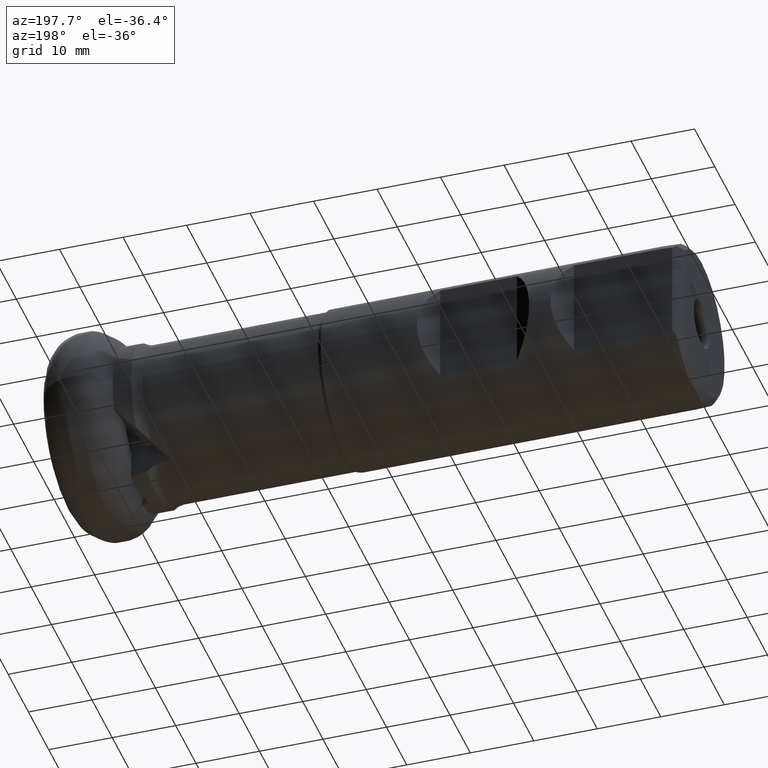
[diagram: clean part render]
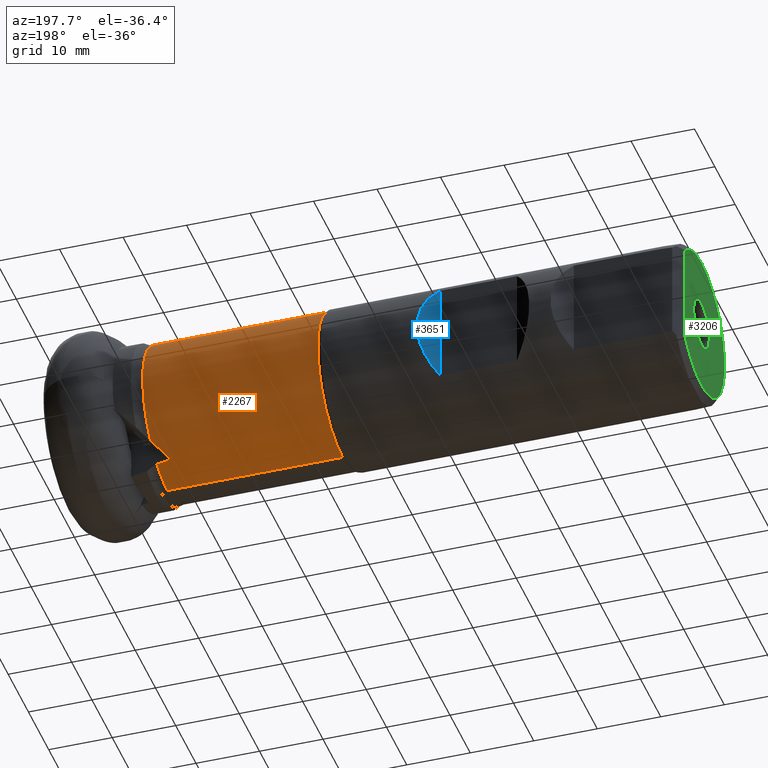
[diagram: same view with three faces highlighted in distinct colors, each labeled with its STEP entity id]
A machine part, auxiliary view with three faces highlighted in distinct colors.
Their STEP definitions:

[orange] entity #2267 — the highlighted cylindrical surface (partial cylindrical patch) has radius 12.2 mm, axis along (1, -0, -0).
#203 = DIRECTION ( 'NONE',  ( 1.000000000000000000, -0.0000000000000000000, -0.0000000000000000000 ) ) ;
#280 = DIRECTION ( 'NONE',  ( 1.000000000000000000, -0.0000000000000000000, -0.0000000000000000000 ) ) ;
#283 = CARTESIAN_POINT ( 'NONE',  ( -16.19876356627006700, 5.458656882526872400, -10.91135154556829100 ) ) ;
#328 = CARTESIAN_POINT ( 'NONE',  ( -15.53705156797336800, 7.569959643064479800, -9.639356252394112100 ) ) ;
#359 = CIRCLE ( 'NONE', #575, 12.20000000000001400 ) ;
#401 = EDGE_CURVE ( 'NONE', #2780, #2243, #359, .T. ) ;
#453 =( BOUNDED_CURVE ( )  B_SPLINE_CURVE ( 3, ( #1324, #328, #3348, #2004 ),
 .UNSPECIFIED., .F., .T. ) 
 B_SPLINE_CURVE_WITH_KNOTS ( ( 4, 4 ),
 ( 2.231314136313999900, 2.519337734126903900 ),
 .UNSPECIFIED. ) 
 CURVE ( )  GEOMETRIC_REPRESENTATION_ITEM ( )  RATIONAL_B_SPLINE_CURVE ( ( 1.000000000000000000, 0.9930988068530011100, 0.9930988068530011100, 1.000000000000000000 ) ) 
 REPRESENTATION_ITEM ( '' )  );
#464 = CARTESIAN_POINT ( 'NONE',  ( -16.96192711833195300, 5.565912525148091200, -10.85636300804280000 ) ) ;
#570 = LINE ( 'NONE', #1992, #1906 ) ;
#575 = AXIS2_PLACEMENT_3D ( 'NONE', #673, #2361, #3075 ) ;
#659 = CARTESIAN_POINT ( 'NONE',  ( -14.65546320936874700, 0.0000000000000000000, 0.0000000000000000000 ) ) ;
#665 = DIRECTION ( 'NONE',  ( 1.000000000000000000, -0.0000000000000000000, -0.0000000000000000000 ) ) ;
#673 = CARTESIAN_POINT ( 'NONE',  ( -14.65546320936874700, 0.0000000000000000000, 0.0000000000000000000 ) ) ;
#679 = DIRECTION ( 'NONE',  ( 1.000000000000000000, -0.0000000000000000000, -0.0000000000000000000 ) ) ;
#932 = EDGE_CURVE ( 'NONE', #2243, #3869, #3958, .T. ) ;
#1011 = CARTESIAN_POINT ( 'NONE',  ( -42.23038475772934000, 0.0000000000000000000, 0.0000000000000000000 ) ) ;
#1307 = CIRCLE ( 'NONE', #3316, 12.19999999999999900 ) ;
#1316 = CARTESIAN_POINT ( 'NONE',  ( -14.65546320936874700, 5.241760162171460500, -11.01653077889190000 ) ) ;
#1320 = CARTESIAN_POINT ( 'NONE',  ( 0.0000000000000000000, 1.494069094959771600E-015, 12.20000000000000600 ) ) ;
#1324 = CARTESIAN_POINT ( 'NONE',  ( -14.65546320936874700, 8.420471293539673500, -8.828117760580378000 ) ) ;
#1524 = VECTOR ( 'NONE', #679, 1000.000000000000000 ) ;
#1536 = CARTESIAN_POINT ( 'NONE',  ( -14.65546320936874700, 0.0000000000000000000, -12.20000000000001500 ) ) ;
#1537 = AXIS2_PLACEMENT_3D ( 'NONE', #1886, #203, #2582 ) ;
#1538 = VERTEX_POINT ( 'NONE', #3115 ) ;
#1873 = VERTEX_POINT ( 'NONE', #2012 ) ;
#1886 = CARTESIAN_POINT ( 'NONE',  ( 0.0000000000000000000, 0.0000000000000000000, 0.0000000000000000000 ) ) ;
#1906 = VECTOR ( 'NONE', #4464, 1000.000000000000000 ) ;
#1917 = EDGE_CURVE ( 'NONE', #3026, #1873, #2168, .T. ) ;
#1992 = CARTESIAN_POINT ( 'NONE',  ( 0.0000000000000000000, 0.0000000000000000000, -12.20000000000000600 ) ) ;
#2004 = CARTESIAN_POINT ( 'NONE',  ( -16.96192711833195300, 5.565912525148091200, -10.85636300804280000 ) ) ;
#2012 = CARTESIAN_POINT ( 'NONE',  ( -14.65546320936874700, 1.494069094959772400E-015, 12.20000000000001500 ) ) ;
#2073 = EDGE_CURVE ( 'NONE', #3026, #3869, #453, .T. ) ;
#2168 = CIRCLE ( 'NONE', #2518, 12.20000000000001400 ) ;
#2243 = VERTEX_POINT ( 'NONE', #3646 ) ;
#2267 = ADVANCED_FACE ( 'NONE', ( #2384 ), #3862, .T. ) ;
#2361 = DIRECTION ( 'NONE',  ( 1.000000000000000000, -0.0000000000000000000, -0.0000000000000000000 ) ) ;
#2384 = FACE_OUTER_BOUND ( 'NONE', #4205, .T. ) ;
#2518 = AXIS2_PLACEMENT_3D ( 'NONE', #659, #280, #2638 ) ;
#2564 = ORIENTED_EDGE ( 'NONE', *, *, #4419, .F. ) ;
#2582 = DIRECTION ( 'NONE',  ( 0.0000000000000000000, 0.0000000000000000000, -1.000000000000000000 ) ) ;
#2638 = DIRECTION ( 'NONE',  ( 0.0000000000000000000, 0.0000000000000000000, -1.000000000000000000 ) ) ;
#2780 = VERTEX_POINT ( 'NONE', #1536 ) ;
#2827 = CARTESIAN_POINT ( 'NONE',  ( -42.23038475772934000, 1.494069094959771100E-015, 12.19999999999999900 ) ) ;
#2892 = ORIENTED_EDGE ( 'NONE', *, *, #4400, .T. ) ;
#3026 = VERTEX_POINT ( 'NONE', #3150 ) ;
#3075 = DIRECTION ( 'NONE',  ( 0.0000000000000000000, 0.0000000000000000000, -1.000000000000000000 ) ) ;
#3115 = CARTESIAN_POINT ( 'NONE',  ( -42.23038475772934000, 0.0000000000000000000, -12.19999999999999900 ) ) ;
#3150 = CARTESIAN_POINT ( 'NONE',  ( -14.65546320936874700, 8.420471293539673500, -8.828117760580378000 ) ) ;
#3316 = AXIS2_PLACEMENT_3D ( 'NONE', #1011, #665, #3375 ) ;
#3348 = CARTESIAN_POINT ( 'NONE',  ( -16.31121552596262700, 6.611827800696149300, -10.32013619542571400 ) ) ;
#3365 = LINE ( 'NONE', #1320, #1524 ) ;
#3375 = DIRECTION ( 'NONE',  ( 0.0000000000000000000, 0.0000000000000000000, -1.000000000000000000 ) ) ;
#3448 = ORIENTED_EDGE ( 'NONE', *, *, #932, .F. ) ;
#3589 = EDGE_CURVE ( 'NONE', #3716, #1873, #3365, .T. ) ;
#3646 = CARTESIAN_POINT ( 'NONE',  ( -14.65546320936874700, 5.241760162171460500, -11.01653077889190000 ) ) ;
#3716 = VERTEX_POINT ( 'NONE', #2827 ) ;
#3815 = ORIENTED_EDGE ( 'NONE', *, *, #3589, .T. ) ;
#3816 = ORIENTED_EDGE ( 'NONE', *, *, #401, .F. ) ;
#3818 = ORIENTED_EDGE ( 'NONE', *, *, #1917, .F. ) ;
#3862 = CYLINDRICAL_SURFACE ( 'NONE', #1537, 12.20000000000000600 ) ;
#3869 = VERTEX_POINT ( 'NONE', #464 ) ;
#3958 =( BOUNDED_CURVE ( )  B_SPLINE_CURVE ( 3, ( #1316, #4101, #283, #4388 ),
 .UNSPECIFIED., .F., .F. ) 
 B_SPLINE_CURVE_WITH_KNOTS ( ( 4, 4 ),
 ( 2.014904207043199100, 2.044541678735901900 ),
 .UNSPECIFIED. ) 
 CURVE ( )  GEOMETRIC_REPRESENTATION_ITEM ( )  RATIONAL_B_SPLINE_CURVE ( ( 1.000000000000000000, 0.9999268030287936600, 0.9999268030287936600, 1.000000000000000000 ) ) 
 REPRESENTATION_ITEM ( '' )  );
#4101 = CARTESIAN_POINT ( 'NONE',  ( -15.42988598377206000, 5.350598185298645500, -10.96474471073596700 ) ) ;
#4205 = EDGE_LOOP ( 'NONE', ( #2892, #3815, #3818, #4249, #3448, #3816, #2564 ) ) ;
#4249 = ORIENTED_EDGE ( 'NONE', *, *, #2073, .T. ) ;
#4388 = CARTESIAN_POINT ( 'NONE',  ( -16.96192711833195300, 5.565912525148091200, -10.85636300804280000 ) ) ;
#4400 = EDGE_CURVE ( 'NONE', #1538, #3716, #1307, .T. ) ;
#4419 = EDGE_CURVE ( 'NONE', #1538, #2780, #570, .T. ) ;
#4464 = DIRECTION ( 'NONE',  ( 1.000000000000000000, -0.0000000000000000000, -0.0000000000000000000 ) ) ;

[blue] entity #3651 — the highlighted planar face has unit normal (0.7071, -0.7071, 0).
#363 = DIRECTION ( 'NONE',  ( 0.7071067811865386900, 0.7071067811865564500, 0.0000000000000000000 ) ) ;
#449 = CARTESIAN_POINT ( 'NONE',  ( -56.80282131661456200, 13.59717868338555400, -3.089404912919581700 ) ) ;
#708 = EDGE_CURVE ( 'NONE', #3521, #3237, #3844, .T. ) ;
#778 = CARTESIAN_POINT ( 'NONE',  ( -60.70000000000000300, 9.700000000000011700, 7.884161337770763100 ) ) ;
#955 = ORIENTED_EDGE ( 'NONE', *, *, #708, .T. ) ;
#1633 = CARTESIAN_POINT ( 'NONE',  ( -60.70000000000000300, 9.700000000000011700, 7.884161337770763100 ) ) ;
#1723 = CARTESIAN_POINT ( 'NONE',  ( -54.70000000000015900, 15.70000000000001000, -25.00000000000000000 ) ) ;
#1796 = DIRECTION ( 'NONE',  ( -0.0000000000000000000, -0.0000000000000000000, 1.000000000000000000 ) ) ;
#1812 = EDGE_LOOP ( 'NONE', ( #3931, #955 ) ) ;
#1851 =( BOUNDED_CURVE ( )  B_SPLINE_CURVE ( 3, ( #1633, #4053, #449, #4181 ),
 .UNSPECIFIED., .F., .T. ) 
 B_SPLINE_CURVE_WITH_KNOTS ( ( 4, 4 ),
 ( 5.600687989903618400, 6.965682624455555000 ),
 .UNSPECIFIED. ) 
 CURVE ( )  GEOMETRIC_REPRESENTATION_ITEM ( )  RATIONAL_B_SPLINE_CURVE ( ( 1.000000000000000000, 0.8506666666666681300, 0.8506666666666681300, 1.000000000000000000 ) ) 
 REPRESENTATION_ITEM ( '' )  );
#2765 = FACE_OUTER_BOUND ( 'NONE', #1812, .T. ) ;
#2800 = CARTESIAN_POINT ( 'NONE',  ( -60.70000000000000300, 9.700000000000011700, -25.00000000000000000 ) ) ;
#3111 = DIRECTION ( 'NONE',  ( 0.7071067811865564500, -0.7071067811865386900, 0.0000000000000000000 ) ) ;
#3237 = VERTEX_POINT ( 'NONE', #778 ) ;
#3362 = CARTESIAN_POINT ( 'NONE',  ( -60.70000000000000300, 9.700000000000011700, -7.884161337770777300 ) ) ;
#3391 = PLANE ( 'NONE',  #3645 ) ;
#3521 = VERTEX_POINT ( 'NONE', #3362 ) ;
#3645 = AXIS2_PLACEMENT_3D ( 'NONE', #1723, #3111, #363 ) ;
#3651 = ADVANCED_FACE ( 'NONE', ( #2765 ), #3391, .F. ) ;
#3844 = LINE ( 'NONE', #2800, #4060 ) ;
#3931 = ORIENTED_EDGE ( 'NONE', *, *, #4095, .T. ) ;
#4053 = CARTESIAN_POINT ( 'NONE',  ( -56.80282131661456200, 13.59717868338555900, 3.089404912919573800 ) ) ;
#4060 = VECTOR ( 'NONE', #1796, 1000.000000000000000 ) ;
#4095 = EDGE_CURVE ( 'NONE', #3237, #3521, #1851, .T. ) ;
#4181 = CARTESIAN_POINT ( 'NONE',  ( -60.70000000000000300, 9.700000000000011700, -7.884161337770777300 ) ) ;

[green] entity #3206 — the highlighted planar face has unit normal (-1, 0, 0).
#308 = CARTESIAN_POINT ( 'NONE',  ( -98.75000000000000000, 4.687152256378822200E-016, -3.827350269189615100 ) ) ;
#495 = CARTESIAN_POINT ( 'NONE',  ( -98.75000000000000000, 1.457329690985349600E-015, 11.39999999999998800 ) ) ;
#521 = AXIS2_PLACEMENT_3D ( 'NONE', #3239, #3221, #1494 ) ;
#625 = CIRCLE ( 'NONE', #1163, 3.827350269189615100 ) ;
#741 = EDGE_CURVE ( 'NONE', #2779, #3446, #625, .T. ) ;
#806 = ORIENTED_EDGE ( 'NONE', *, *, #860, .T. ) ;
#860 = EDGE_CURVE ( 'NONE', #3446, #2779, #1675, .T. ) ;
#908 = DIRECTION ( 'NONE',  ( 1.000000000000000000, -0.0000000000000000000, -0.0000000000000000000 ) ) ;
#929 = CARTESIAN_POINT ( 'NONE',  ( -98.75000000000000000, 8.199999999999992200, 7.919595949289323800 ) ) ;
#946 = EDGE_LOOP ( 'NONE', ( #3884, #806 ) ) ;
#1040 = VECTOR ( 'NONE', #4132, 1000.000000000000000 ) ;
#1163 = AXIS2_PLACEMENT_3D ( 'NONE', #1814, #2156, #2141 ) ;
#1264 = VERTEX_POINT ( 'NONE', #2911 ) ;
#1308 = CARTESIAN_POINT ( 'NONE',  ( -98.75000000000000000, 0.0000000000000000000, 0.0000000000000000000 ) ) ;
#1452 = AXIS2_PLACEMENT_3D ( 'NONE', #2249, #908, #3627 ) ;
#1494 = DIRECTION ( 'NONE',  ( 0.0000000000000000000, 0.0000000000000000000, 1.000000000000000000 ) ) ;
#1675 = CIRCLE ( 'NONE', #3189, 3.827350269189615100 ) ;
#1759 = EDGE_CURVE ( 'NONE', #2197, #3386, #2362, .T. ) ;
#1806 = CARTESIAN_POINT ( 'NONE',  ( -98.75000000000000000, 0.0000000000000000000, 0.0000000000000000000 ) ) ;
#1814 = CARTESIAN_POINT ( 'NONE',  ( -98.75000000000000000, 0.0000000000000000000, 0.0000000000000000000 ) ) ;
#1997 = EDGE_CURVE ( 'NONE', #3386, #1264, #3414, .T. ) ;
#2141 = DIRECTION ( 'NONE',  ( 0.0000000000000000000, 0.0000000000000000000, -1.000000000000000000 ) ) ;
#2156 = DIRECTION ( 'NONE',  ( 1.000000000000000000, -0.0000000000000000000, -0.0000000000000000000 ) ) ;
#2197 = VERTEX_POINT ( 'NONE', #495 ) ;
#2201 = ORIENTED_EDGE ( 'NONE', *, *, #3586, .F. ) ;
#2249 = CARTESIAN_POINT ( 'NONE',  ( -98.75000000000000000, 0.0000000000000000000, 0.0000000000000000000 ) ) ;
#2362 = CIRCLE ( 'NONE', #1452, 11.39999999999998800 ) ;
#2486 = PLANE ( 'NONE',  #521 ) ;
#2604 = DIRECTION ( 'NONE',  ( 0.0000000000000000000, 0.0000000000000000000, -1.000000000000000000 ) ) ;
#2779 = VERTEX_POINT ( 'NONE', #3266 ) ;
#2836 = CARTESIAN_POINT ( 'NONE',  ( -98.75000000000000000, 0.0000000000000000000, -11.39999999999998800 ) ) ;
#2911 = CARTESIAN_POINT ( 'NONE',  ( -98.75000000000000000, 8.199999999999992200, -7.919595949289323800 ) ) ;
#2982 = LINE ( 'NONE', #3775, #1040 ) ;
#3010 = DIRECTION ( 'NONE',  ( 1.000000000000000000, -0.0000000000000000000, -0.0000000000000000000 ) ) ;
#3189 = AXIS2_PLACEMENT_3D ( 'NONE', #1806, #3861, #3488 ) ;
#3206 = ADVANCED_FACE ( 'NONE', ( #3478, #3968 ), #2486, .T. ) ;
#3221 = DIRECTION ( 'NONE',  ( -1.000000000000000000, 0.0000000000000000000, 0.0000000000000000000 ) ) ;
#3239 = CARTESIAN_POINT ( 'NONE',  ( -98.75000000000000000, 11.39999999999998800, 0.0000000000000000000 ) ) ;
#3266 = CARTESIAN_POINT ( 'NONE',  ( -98.75000000000000000, 0.0000000000000000000, 3.827350269189615100 ) ) ;
#3322 = EDGE_LOOP ( 'NONE', ( #2201, #3821, #3725, #3494 ) ) ;
#3335 = DIRECTION ( 'NONE',  ( 0.0000000000000000000, 0.0000000000000000000, -1.000000000000000000 ) ) ;
#3383 = EDGE_CURVE ( 'NONE', #3541, #2197, #3536, .T. ) ;
#3386 = VERTEX_POINT ( 'NONE', #2836 ) ;
#3414 = CIRCLE ( 'NONE', #3856, 11.39999999999998800 ) ;
#3446 = VERTEX_POINT ( 'NONE', #308 ) ;
#3478 = FACE_OUTER_BOUND ( 'NONE', #3322, .T. ) ;
#3488 = DIRECTION ( 'NONE',  ( 0.0000000000000000000, 0.0000000000000000000, -1.000000000000000000 ) ) ;
#3494 = ORIENTED_EDGE ( 'NONE', *, *, #3383, .F. ) ;
#3536 = CIRCLE ( 'NONE', #4323, 11.39999999999998800 ) ;
#3541 = VERTEX_POINT ( 'NONE', #929 ) ;
#3586 = EDGE_CURVE ( 'NONE', #1264, #3541, #2982, .T. ) ;
#3627 = DIRECTION ( 'NONE',  ( 0.0000000000000000000, 0.0000000000000000000, -1.000000000000000000 ) ) ;
#3725 = ORIENTED_EDGE ( 'NONE', *, *, #1759, .F. ) ;
#3775 = CARTESIAN_POINT ( 'NONE',  ( -98.75000000000000000, 8.199999999999992200, -25.00000000000000000 ) ) ;
#3821 = ORIENTED_EDGE ( 'NONE', *, *, #1997, .F. ) ;
#3856 = AXIS2_PLACEMENT_3D ( 'NONE', #4332, #4348, #2604 ) ;
#3861 = DIRECTION ( 'NONE',  ( 1.000000000000000000, -0.0000000000000000000, -0.0000000000000000000 ) ) ;
#3884 = ORIENTED_EDGE ( 'NONE', *, *, #741, .T. ) ;
#3968 = FACE_BOUND ( 'NONE', #946, .T. ) ;
#4132 = DIRECTION ( 'NONE',  ( -0.0000000000000000000, -0.0000000000000000000, 1.000000000000000000 ) ) ;
#4323 = AXIS2_PLACEMENT_3D ( 'NONE', #1308, #3010, #3335 ) ;
#4332 = CARTESIAN_POINT ( 'NONE',  ( -98.75000000000000000, 0.0000000000000000000, 0.0000000000000000000 ) ) ;
#4348 = DIRECTION ( 'NONE',  ( 1.000000000000000000, -0.0000000000000000000, -0.0000000000000000000 ) ) ;